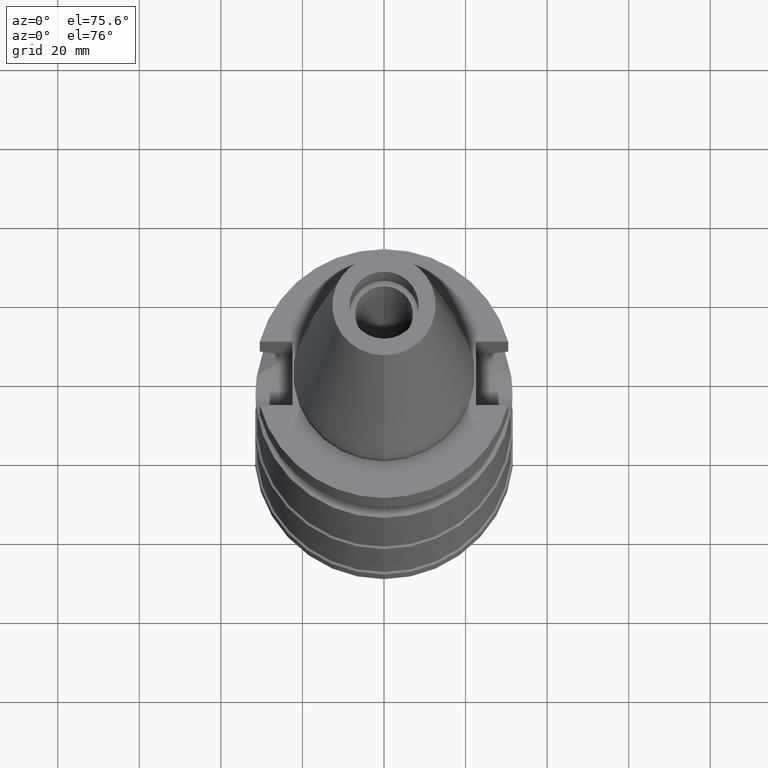
[diagram: clean part render]
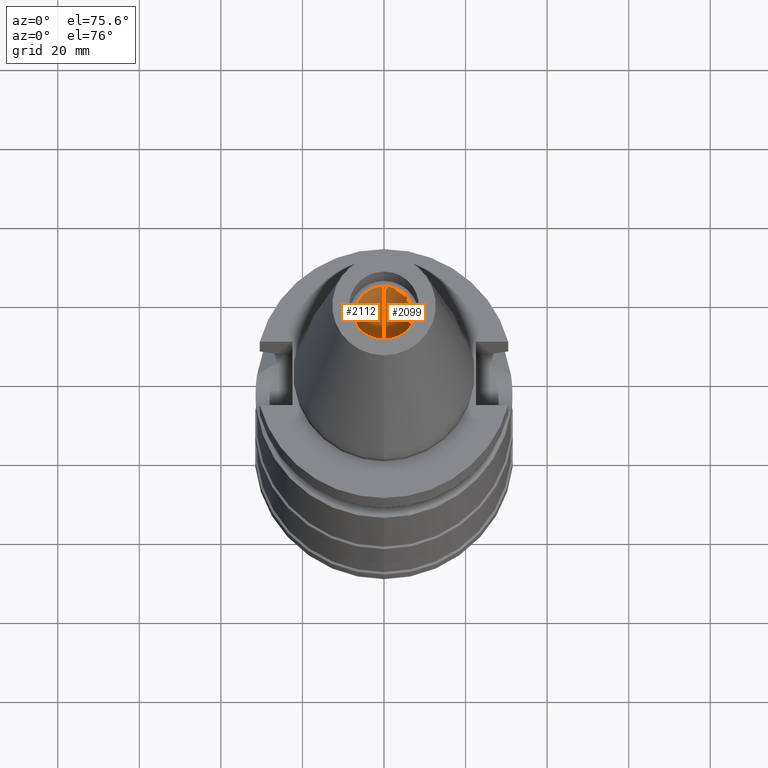
[diagram: same view with one multi-face feature highlighted, each face labeled with its STEP entity id]
A machine part, auxiliary view. The highlighted faces form ONE feature: a constant-radius fillet chain: 2 tangent blend faces with common blend radius 7.1 mm. The faces share edges in the B-rep.
Their STEP definitions:
[1] entity #2112 (Cylinder):
#1030=CARTESIAN_POINT('',(0.E0,2.120720862083E-14,-5.684341886081E-14));
#1031=DIRECTION('',(0.E0,0.E0,-1.E0));
#1032=DIRECTION('',(0.E0,-1.E0,0.E0));
#1033=AXIS2_PLACEMENT_3D('',#1030,#1031,#1032);
#1045=DIRECTION('',(0.E0,0.E0,1.E0));
#1046=VECTOR('',#1045,5.64E1);
#1047=CARTESIAN_POINT('',(0.E0,7.1E0,-5.684341886081E-14));
#1048=LINE('',#1047,#1046);
#1060=DIRECTION('',(0.E0,0.E0,1.E0));
#1061=VECTOR('',#1060,5.64E1);
#1062=CARTESIAN_POINT('',(0.E0,-7.1E0,-5.684341886081E-14));
#1063=LINE('',#1062,#1061);
#1091=CARTESIAN_POINT('',(0.E0,2.120720862083E-14,5.64E1));
#1092=DIRECTION('',(0.E0,0.E0,1.E0));
#1093=DIRECTION('',(0.E0,1.E0,0.E0));
#1094=AXIS2_PLACEMENT_3D('',#1091,#1092,#1093);
#1125=CARTESIAN_POINT('',(0.E0,-7.1E0,5.64E1));
#1126=CARTESIAN_POINT('',(0.E0,7.1E0,5.64E1));
#1127=VERTEX_POINT('',#1125);
#1128=VERTEX_POINT('',#1126);
#1129=CARTESIAN_POINT('',(0.E0,7.1E0,-5.684341886081E-14));
#1130=VERTEX_POINT('',#1129);
#1131=CARTESIAN_POINT('',(0.E0,-7.1E0,-5.684341886081E-14));
#1132=VERTEX_POINT('',#1131);
#2100=CARTESIAN_POINT('',(0.E0,2.120720862083E-14,7.317E1));
#2101=DIRECTION('',(0.E0,0.E0,-1.E0));
#2102=DIRECTION('',(0.E0,-1.E0,0.E0));
#2103=AXIS2_PLACEMENT_3D('',#2100,#2101,#2102);
#2104=CYLINDRICAL_SURFACE('',#2103,7.1E0);
#2105=ORIENTED_EDGE('',*,*,#2090,.F.);
#2106=ORIENTED_EDGE('',*,*,#2067,.F.);
#2107=ORIENTED_EDGE('',*,*,#2094,.T.);
#2109=ORIENTED_EDGE('',*,*,#2108,.F.);
#2110=EDGE_LOOP('',(#2105,#2106,#2107,#2109));
#2111=FACE_OUTER_BOUND('',#2110,.F.);
#1034=CIRCLE('',#1033,7.1E0);
#1095=CIRCLE('',#1094,7.1E0);
#2067=EDGE_CURVE('',#1132,#1130,#1034,.T.);
#2090=EDGE_CURVE('',#1130,#1128,#1048,.T.);
#2094=EDGE_CURVE('',#1132,#1127,#1063,.T.);
#2108=EDGE_CURVE('',#1128,#1127,#1095,.T.);
#2112=ADVANCED_FACE('',(#2111),#2104,.F.);
[2] entity #2099 (Cylinder):
#1045=DIRECTION('',(0.E0,0.E0,1.E0));
#1046=VECTOR('',#1045,5.64E1);
#1047=CARTESIAN_POINT('',(0.E0,7.1E0,-5.684341886081E-14));
#1048=LINE('',#1047,#1046);
#1052=CARTESIAN_POINT('',(0.E0,2.120720862083E-14,-5.684341886081E-14));
#1053=DIRECTION('',(0.E0,0.E0,1.E0));
#1054=DIRECTION('',(0.E0,-1.E0,0.E0));
#1055=AXIS2_PLACEMENT_3D('',#1052,#1053,#1054);
#1060=DIRECTION('',(0.E0,0.E0,1.E0));
#1061=VECTOR('',#1060,5.64E1);
#1062=CARTESIAN_POINT('',(0.E0,-7.1E0,-5.684341886081E-14));
#1063=LINE('',#1062,#1061);
#1083=CARTESIAN_POINT('',(0.E0,2.120720862083E-14,5.64E1));
#1084=DIRECTION('',(0.E0,0.E0,1.E0));
#1085=DIRECTION('',(0.E0,-1.E0,0.E0));
#1086=AXIS2_PLACEMENT_3D('',#1083,#1084,#1085);
#1125=CARTESIAN_POINT('',(0.E0,-7.1E0,5.64E1));
#1126=CARTESIAN_POINT('',(0.E0,7.1E0,5.64E1));
#1127=VERTEX_POINT('',#1125);
#1128=VERTEX_POINT('',#1126);
#1129=CARTESIAN_POINT('',(0.E0,7.1E0,-5.684341886081E-14));
#1130=VERTEX_POINT('',#1129);
#1131=CARTESIAN_POINT('',(0.E0,-7.1E0,-5.684341886081E-14));
#1132=VERTEX_POINT('',#1131);
#2085=CARTESIAN_POINT('',(0.E0,2.120720862083E-14,7.317E1));
#2086=DIRECTION('',(0.E0,0.E0,-1.E0));
#2087=DIRECTION('',(0.E0,-1.E0,0.E0));
#2088=AXIS2_PLACEMENT_3D('',#2085,#2086,#2087);
#2089=CYLINDRICAL_SURFACE('',#2088,7.1E0);
#2091=ORIENTED_EDGE('',*,*,#2090,.T.);
#2093=ORIENTED_EDGE('',*,*,#2092,.F.);
#2095=ORIENTED_EDGE('',*,*,#2094,.F.);
#2096=ORIENTED_EDGE('',*,*,#2078,.T.);
#2097=EDGE_LOOP('',(#2091,#2093,#2095,#2096));
#2098=FACE_OUTER_BOUND('',#2097,.F.);
#1056=CIRCLE('',#1055,7.1E0);
#1087=CIRCLE('',#1086,7.1E0);
#2078=EDGE_CURVE('',#1132,#1130,#1056,.T.);
#2090=EDGE_CURVE('',#1130,#1128,#1048,.T.);
#2092=EDGE_CURVE('',#1127,#1128,#1087,.T.);
#2094=EDGE_CURVE('',#1132,#1127,#1063,.T.);
#2099=ADVANCED_FACE('',(#2098),#2089,.F.);